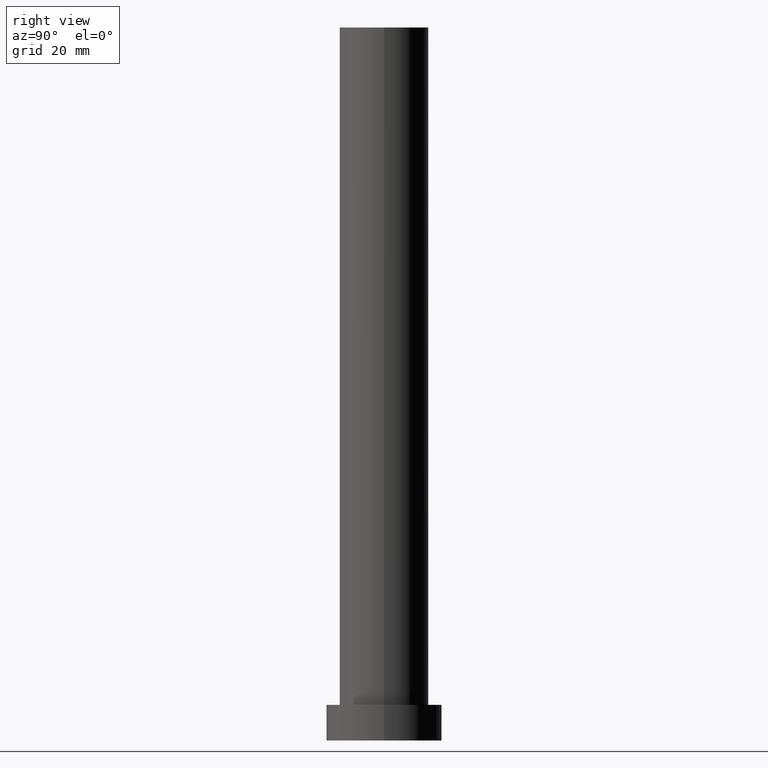
[diagram: clean part render]
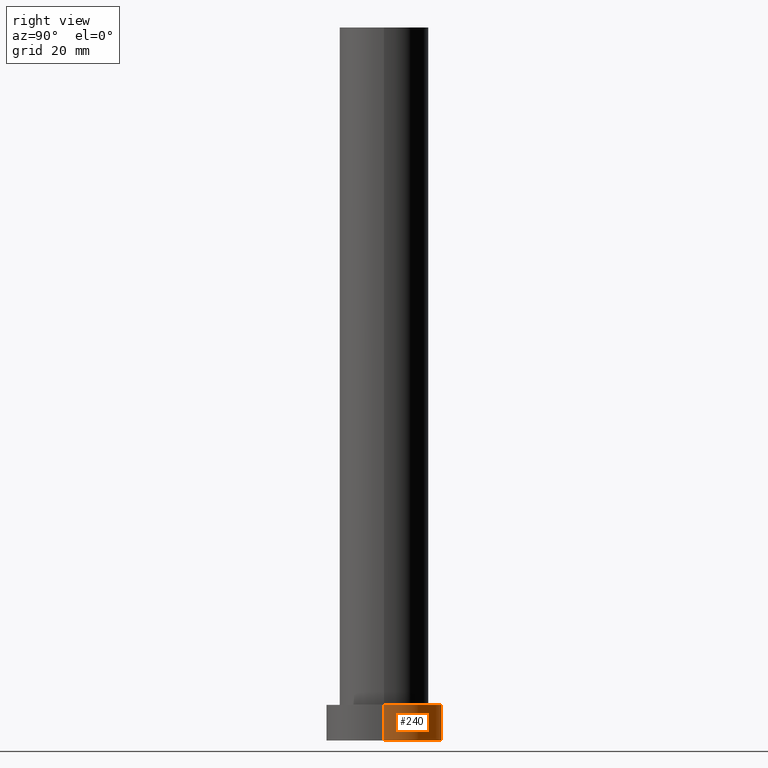
[diagram: same view with one face highlighted and labeled with its STEP entity id]
A machine part, right view. The second image highlights one B-rep face of the part: STEP entity #240.
In plain terms, the highlighted cylindrical surface (partial cylindrical patch) has radius 13 mm, axis along (-0, -0, -1).
Its self-contained STEP definition (entity closure, byte-faithful):
#8 = DIRECTION ( 'NONE',  ( -1.000000000000000000, 0.000000000000000000, 0.000000000000000000 ) ) ;
#23 = FACE_OUTER_BOUND ( 'NONE', #47, .T. ) ;
#25 = EDGE_CURVE ( 'NONE', #170, #51, #153, .T. ) ;
#35 = DIRECTION ( 'NONE',  ( 1.000000000000000000, 0.000000000000000000, 0.000000000000000000 ) ) ;
#36 = ORIENTED_EDGE ( 'NONE', *, *, #107, .T. ) ;
#37 = DIRECTION ( 'NONE',  ( 0.000000000000000000, 0.000000000000000000, 1.000000000000000000 ) ) ;
#47 = EDGE_LOOP ( 'NONE', ( #233, #115, #36, #139 ) ) ;
#51 = VERTEX_POINT ( 'NONE', #229 ) ;
#55 = LINE ( 'NONE', #248, #69 ) ;
#56 = VERTEX_POINT ( 'NONE', #228 ) ;
#65 = AXIS2_PLACEMENT_3D ( 'NONE', #211, #37, #213 ) ;
#66 = DIRECTION ( 'NONE',  ( -0.000000000000000000, -0.000000000000000000, -1.000000000000000000 ) ) ;
#67 = CARTESIAN_POINT ( 'NONE',  ( 13.00000000000000178, 1.592040838891559293E-15, 8.000000000000000000 ) ) ;
#69 = VECTOR ( 'NONE', #86, 1000.000000000000000 ) ;
#75 = CIRCLE ( 'NONE', #65, 13.00000000000000178 ) ;
#85 = CYLINDRICAL_SURFACE ( 'NONE', #109, 13.00000000000000178 ) ;
#86 = DIRECTION ( 'NONE',  ( -0.000000000000000000, -0.000000000000000000, -1.000000000000000000 ) ) ;
#92 = VERTEX_POINT ( 'NONE', #202 ) ;
#100 = CARTESIAN_POINT ( 'NONE',  ( 0.000000000000000000, 0.000000000000000000, 8.000000000000000000 ) ) ;
#107 = EDGE_CURVE ( 'NONE', #51, #92, #230, .T. ) ;
#109 = AXIS2_PLACEMENT_3D ( 'NONE', #100, #66, #8 ) ;
#115 = ORIENTED_EDGE ( 'NONE', *, *, #25, .T. ) ;
#125 = AXIS2_PLACEMENT_3D ( 'NONE', #136, #179, #35 ) ;
#132 = EDGE_CURVE ( 'NONE', #170, #56, #75, .T. ) ;
#136 = CARTESIAN_POINT ( 'NONE',  ( 0.000000000000000000, 0.000000000000000000, 0.000000000000000000 ) ) ;
#139 = ORIENTED_EDGE ( 'NONE', *, *, #146, .F. ) ;
#146 = EDGE_CURVE ( 'NONE', #56, #92, #55, .T. ) ;
#153 = LINE ( 'NONE', #182, #226 ) ;
#170 = VERTEX_POINT ( 'NONE', #67 ) ;
#179 = DIRECTION ( 'NONE',  ( 0.000000000000000000, 0.000000000000000000, 1.000000000000000000 ) ) ;
#182 = CARTESIAN_POINT ( 'NONE',  ( 13.00000000000000178, 1.592040838891559293E-15, 8.000000000000000000 ) ) ;
#202 = CARTESIAN_POINT ( 'NONE',  ( -13.00000000000000178, 0.000000000000000000, 0.000000000000000000 ) ) ;
#211 = CARTESIAN_POINT ( 'NONE',  ( 0.000000000000000000, 0.000000000000000000, 8.000000000000000000 ) ) ;
#213 = DIRECTION ( 'NONE',  ( 1.000000000000000000, 0.000000000000000000, 0.000000000000000000 ) ) ;
#226 = VECTOR ( 'NONE', #250, 1000.000000000000000 ) ;
#228 = CARTESIAN_POINT ( 'NONE',  ( -13.00000000000000178, 0.000000000000000000, 8.000000000000000000 ) ) ;
#229 = CARTESIAN_POINT ( 'NONE',  ( 13.00000000000000178, 1.592040838891559293E-15, 0.000000000000000000 ) ) ;
#230 = CIRCLE ( 'NONE', #125, 13.00000000000000178 ) ;
#233 = ORIENTED_EDGE ( 'NONE', *, *, #132, .F. ) ;
#240 = ADVANCED_FACE ( 'NONE', ( #23 ), #85, .T. ) ;
#248 = CARTESIAN_POINT ( 'NONE',  ( -13.00000000000000178, 0.000000000000000000, 8.000000000000000000 ) ) ;
#250 = DIRECTION ( 'NONE',  ( -0.000000000000000000, -0.000000000000000000, -1.000000000000000000 ) ) ;